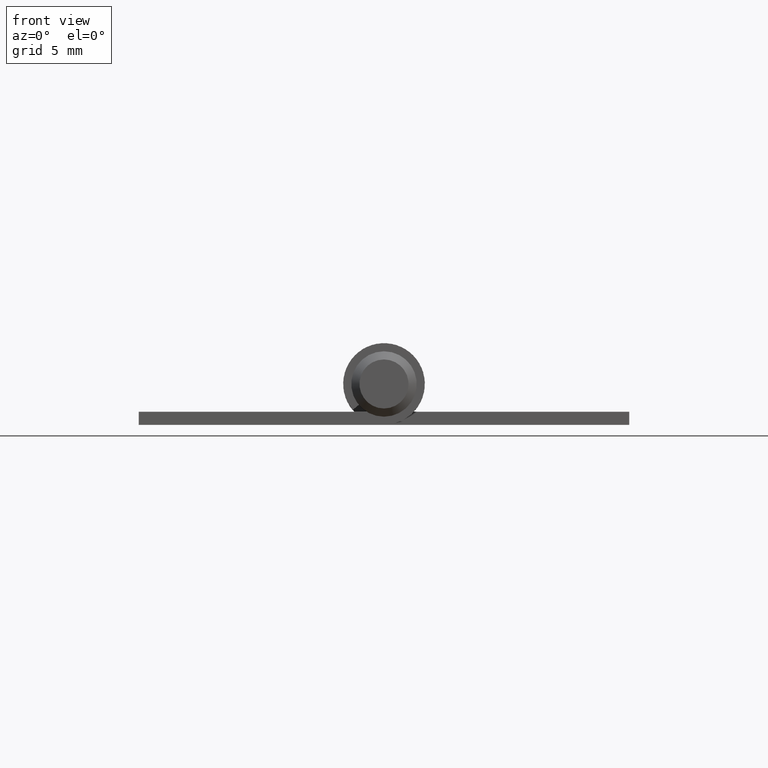
[diagram: clean part render]
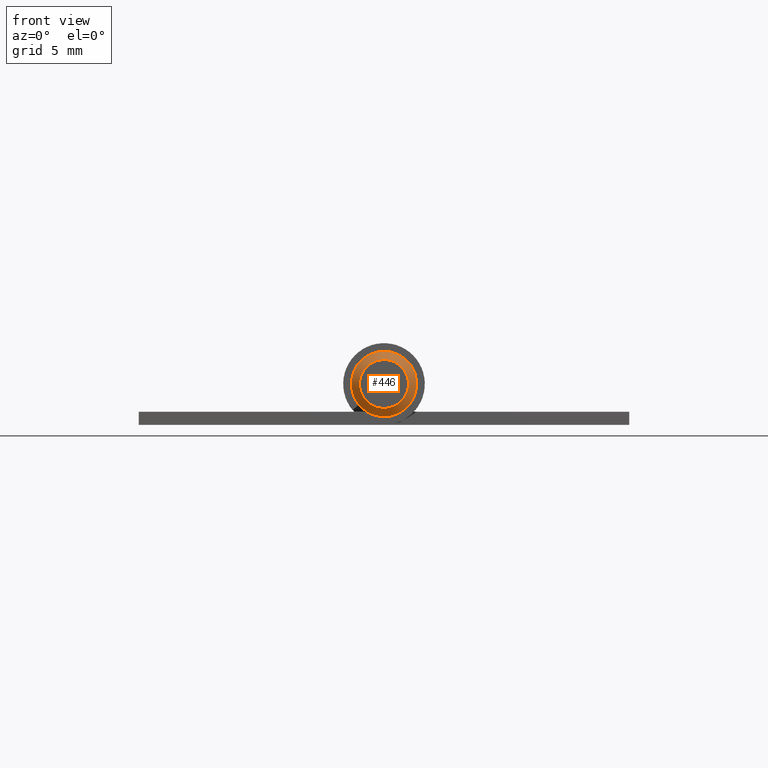
[diagram: same view with one face highlighted and labeled with its STEP entity id]
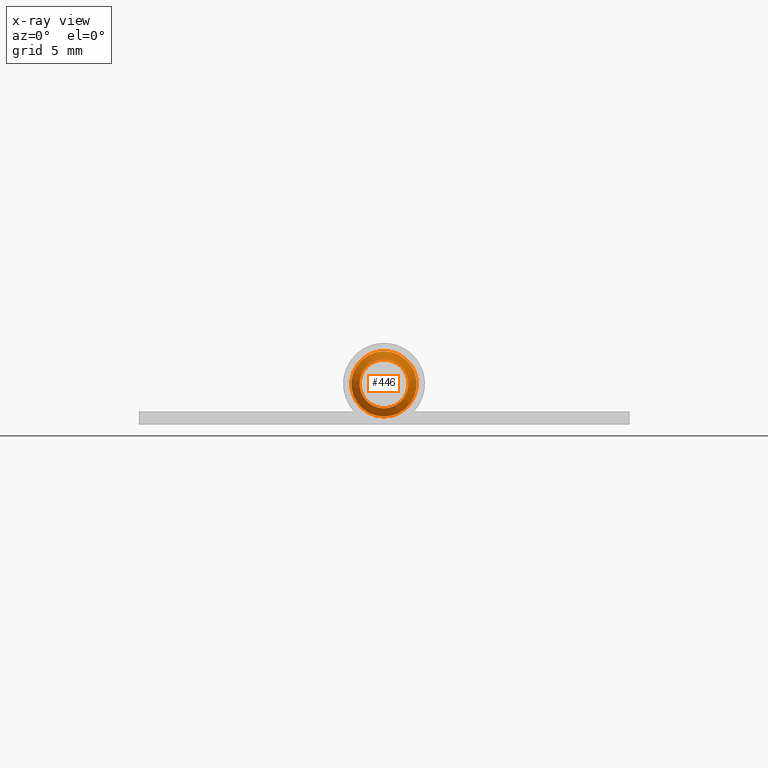
[diagram: x-ray of the same camera — body ghosted, the highlighted face saturated]
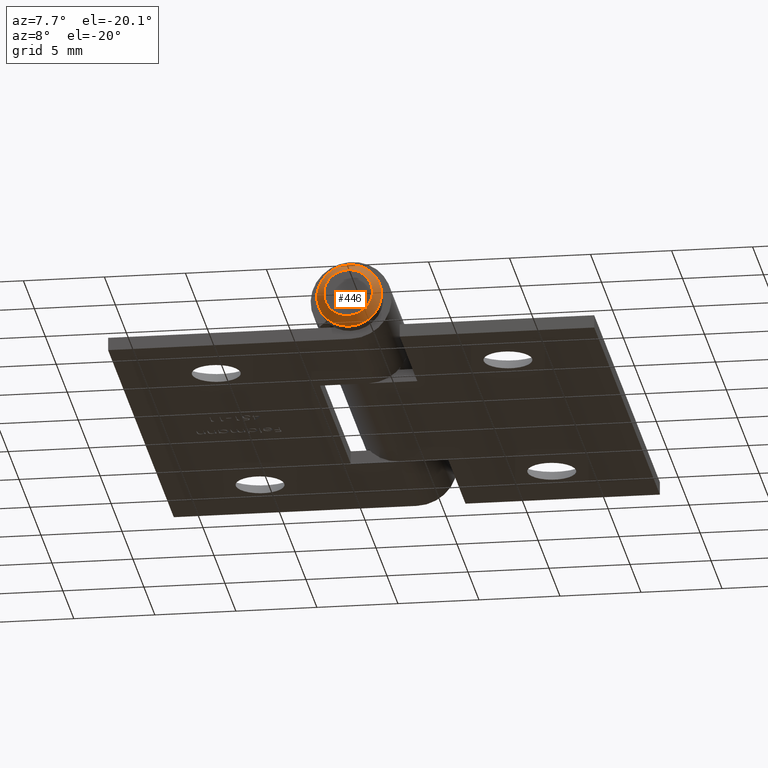
[diagram: same view with one face highlighted and labeled with its STEP entity id]
A machine part, front view. The second image highlights one B-rep face of the part: STEP entity #446.
The next image is the same camera in x-ray: the body ghosted, the highlighted face saturated — about 0% of this face is hidden behind the body in this view.
A second angle (auxiliary view) of the same face is appended — the face is thin or edge-on in the first view.
In plain terms, the highlighted conical surface has half-angle 45 deg.
Its self-contained STEP definition (entity closure, byte-faithful):
#206 = DIRECTION ( 'NONE',  ( 0.000000000000000000, 0.000000000000000000, -1.000000000000000000 ) ) ;
#407 = DIRECTION ( 'NONE',  ( 0.000000000000000000, -1.000000000000000000, 0.000000000000000000 ) ) ;
#446 = ADVANCED_FACE ( 'NONE', ( #5259, #3383 ), #605, .T. ) ;
#605 = CONICAL_SURFACE ( 'NONE', #1554, 2.000000000000000000, 0.7853981633974446153 ) ;
#867 = CIRCLE ( 'NONE', #5789, 1.499999999999999778 ) ;
#1150 = VERTEX_POINT ( 'NONE', #6099 ) ;
#1554 = AXIS2_PLACEMENT_3D ( 'NONE', #8427, #3089, #1621 ) ;
#1621 = DIRECTION ( 'NONE',  ( 0.000000000000000000, 0.000000000000000000, -1.000000000000000000 ) ) ;
#2120 = ORIENTED_EDGE ( 'NONE', *, *, #7345, .T. ) ;
#2331 = VERTEX_POINT ( 'NONE', #3843 ) ;
#2511 = CARTESIAN_POINT ( 'NONE',  ( 0.000000000000000000, -16.40000000000000213, 0.000000000000000000 ) ) ;
#3089 = DIRECTION ( 'NONE',  ( -0.000000000000000000, 1.000000000000000000, -0.000000000000000000 ) ) ;
#3383 = FACE_OUTER_BOUND ( 'NONE', #5258, .T. ) ;
#3843 = CARTESIAN_POINT ( 'NONE',  ( 0.000000000000000000, -15.89999999999999680, -2.000000000000000000 ) ) ;
#3918 = CARTESIAN_POINT ( 'NONE',  ( 0.000000000000000000, -15.89999999999999680, 0.000000000000000000 ) ) ;
#4017 = DIRECTION ( 'NONE',  ( 0.000000000000000000, 0.000000000000000000, -1.000000000000000000 ) ) ;
#4449 = EDGE_CURVE ( 'NONE', #1150, #1150, #867, .T. ) ;
#4538 = EDGE_LOOP ( 'NONE', ( #9359 ) ) ;
#4540 = AXIS2_PLACEMENT_3D ( 'NONE', #3918, #9146, #206 ) ;
#5154 = CIRCLE ( 'NONE', #4540, 2.000000000000000000 ) ;
#5258 = EDGE_LOOP ( 'NONE', ( #2120 ) ) ;
#5259 = FACE_BOUND ( 'NONE', #4538, .T. ) ;
#5789 = AXIS2_PLACEMENT_3D ( 'NONE', #2511, #407, #4017 ) ;
#6099 = CARTESIAN_POINT ( 'NONE',  ( 0.000000000000000000, -16.40000000000000213, -1.499999999999999778 ) ) ;
#7345 = EDGE_CURVE ( 'NONE', #2331, #2331, #5154, .T. ) ;
#8427 = CARTESIAN_POINT ( 'NONE',  ( 0.000000000000000000, -15.89999999999999680, 0.000000000000000000 ) ) ;
#9146 = DIRECTION ( 'NONE',  ( 0.000000000000000000, -1.000000000000000000, 0.000000000000000000 ) ) ;
#9359 = ORIENTED_EDGE ( 'NONE', *, *, #4449, .F. ) ;